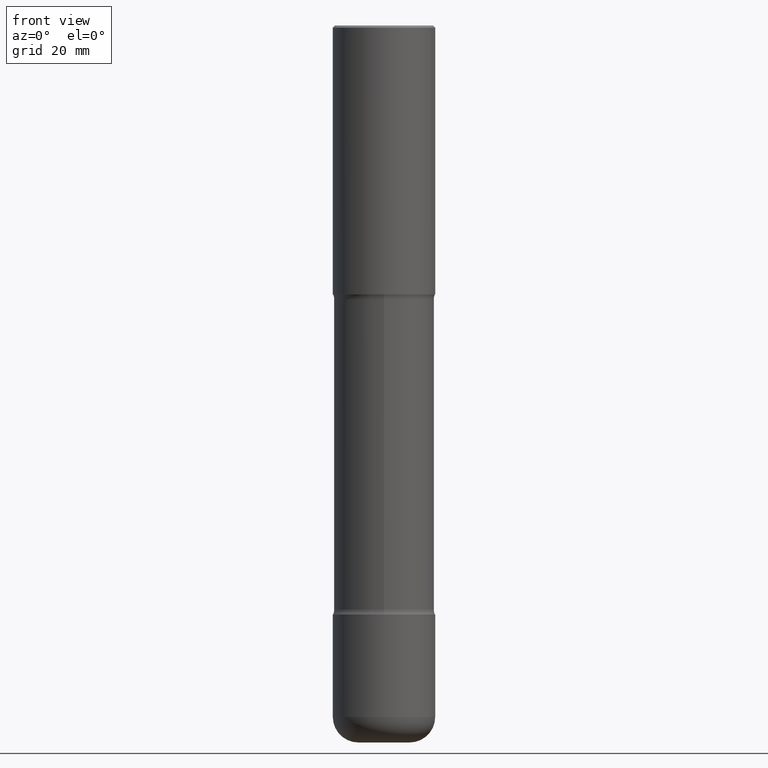
[diagram: clean part render]
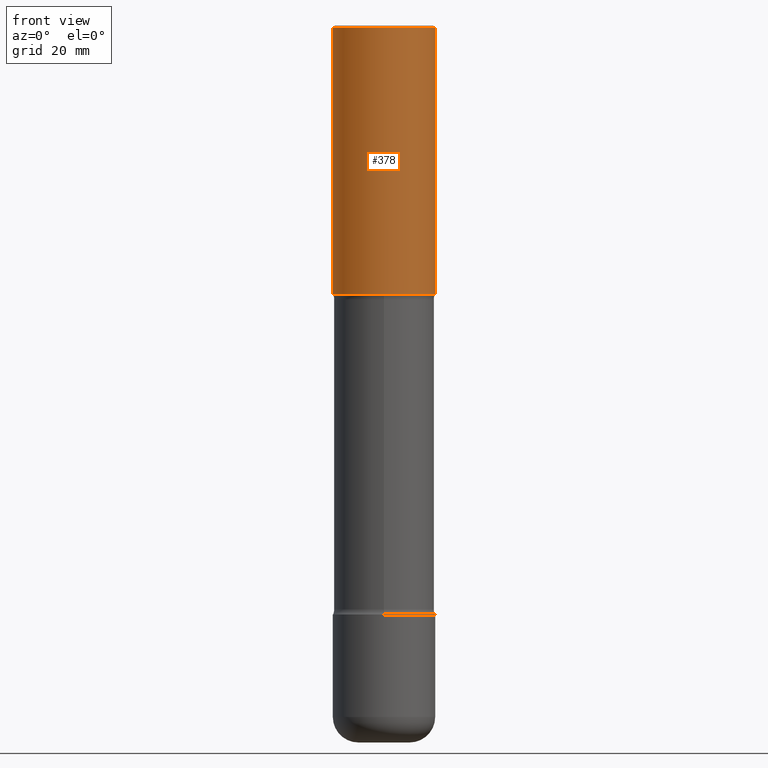
[diagram: same view with one face highlighted and labeled with its STEP entity id]
A machine part, front view. The second image highlights one B-rep face of the part: STEP entity #378.
In plain terms, the highlighted cylindrical surface (partial cylindrical patch) has radius 12.7 mm, axis along (-0, 0, 1).
Its self-contained STEP definition (entity closure, byte-faithful):
#1 = VERTEX_POINT ( 'NONE', #482 ) ;
#7 = DIRECTION ( 'NONE',  ( -2.445468806185136597E-29, 3.491481338843145583E-15, 1.000000000000000000 ) ) ;
#24 = DIRECTION ( 'NONE',  ( -2.445468806185136877E-29, 3.491481338843145188E-15, 1.000000000000000000 ) ) ;
#45 = CYLINDRICAL_SURFACE ( 'NONE', #360, 0.5000000000000002220 ) ;
#46 = VERTEX_POINT ( 'NONE', #99 ) ;
#78 = CARTESIAN_POINT ( 'NONE',  ( -0.5000000000000000000, 3.421651712066270057E-15, -0.02000000000000010797 ) ) ;
#98 = EDGE_CURVE ( 'NONE', #46, #1, #128, .T. ) ;
#99 = CARTESIAN_POINT ( 'NONE',  ( -0.5000000000000004441, -1.064770391819553504E-15, -2.625000000000000000 ) ) ;
#110 = VECTOR ( 'NONE', #245, 39.37007874015748143 ) ;
#128 = CIRCLE ( 'NONE', #281, 0.5000000000000004441 ) ;
#133 = DIRECTION ( 'NONE',  ( 1.000000000000000000, -6.982962677686267499E-15, 4.876176775795936353E-29 ) ) ;
#136 = CARTESIAN_POINT ( 'NONE',  ( 4.890937612370299433E-31, -6.982962677686328587E-17, -0.02000000000000010797 ) ) ;
#160 = EDGE_CURVE ( 'NONE', #46, #216, #433, .T. ) ;
#175 = DIRECTION ( 'NONE',  ( 1.000000000000000000, -6.982962677686266711E-15, 0.000000000000000000 ) ) ;
#190 = ORIENTED_EDGE ( 'NONE', *, *, #249, .T. ) ;
#213 = LINE ( 'NONE', #377, #110 ) ;
#216 = VERTEX_POINT ( 'NONE', #78 ) ;
#223 = FACE_OUTER_BOUND ( 'NONE', #505, .T. ) ;
#237 = DIRECTION ( 'NONE',  ( 1.000000000000000000, -6.982962677686268288E-15, 0.000000000000000000 ) ) ;
#245 = DIRECTION ( 'NONE',  ( -2.445468806185136877E-29, 3.491481338843145188E-15, 1.000000000000000000 ) ) ;
#249 = EDGE_CURVE ( 'NONE', #1, #375, #213, .T. ) ;
#274 = AXIS2_PLACEMENT_3D ( 'NONE', #136, #473, #175 ) ;
#281 = AXIS2_PLACEMENT_3D ( 'NONE', #497, #7, #237 ) ;
#316 = VECTOR ( 'NONE', #24, 39.37007874015748143 ) ;
#320 = ORIENTED_EDGE ( 'NONE', *, *, #98, .T. ) ;
#345 = EDGE_CURVE ( 'NONE', #216, #375, #532, .T. ) ;
#354 = CARTESIAN_POINT ( 'NONE',  ( 0.000000000000000000, 0.000000000000000000, 0.000000000000000000 ) ) ;
#356 = CARTESIAN_POINT ( 'NONE',  ( 0.5000000000000000000, -3.500078625662629079E-15, -0.02000000000000010797 ) ) ;
#360 = AXIS2_PLACEMENT_3D ( 'NONE', #354, #525, #133 ) ;
#375 = VERTEX_POINT ( 'NONE', #356 ) ;
#377 = CARTESIAN_POINT ( 'NONE',  ( 0.5000000000000002220, -3.491481338843135327E-15, 2.438088387897969298E-29 ) ) ;
#378 = ADVANCED_FACE ( 'NONE', ( #223 ), #45, .T. ) ;
#429 = CARTESIAN_POINT ( 'NONE',  ( -0.5000000000000002220, 3.552713678800502507E-15, -2.459467545127454292E-29 ) ) ;
#433 = LINE ( 'NONE', #429, #316 ) ;
#473 = DIRECTION ( 'NONE',  ( -2.445468806185136597E-29, 3.491481338843145583E-15, 1.000000000000000000 ) ) ;
#482 = CARTESIAN_POINT ( 'NONE',  ( 0.5000000000000004441, -1.265661985330639470E-14, -2.625000000000000000 ) ) ;
#497 = CARTESIAN_POINT ( 'NONE',  ( 6.419355616235983567E-29, -9.165138514463256612E-15, -2.625000000000000000 ) ) ;
#505 = EDGE_LOOP ( 'NONE', ( #524, #320, #190, #518 ) ) ;
#518 = ORIENTED_EDGE ( 'NONE', *, *, #345, .F. ) ;
#524 = ORIENTED_EDGE ( 'NONE', *, *, #160, .F. ) ;
#525 = DIRECTION ( 'NONE',  ( -2.445468806185136597E-29, 3.491481338843145583E-15, 1.000000000000000000 ) ) ;
#532 = CIRCLE ( 'NONE', #274, 0.5000000000000000000 ) ;